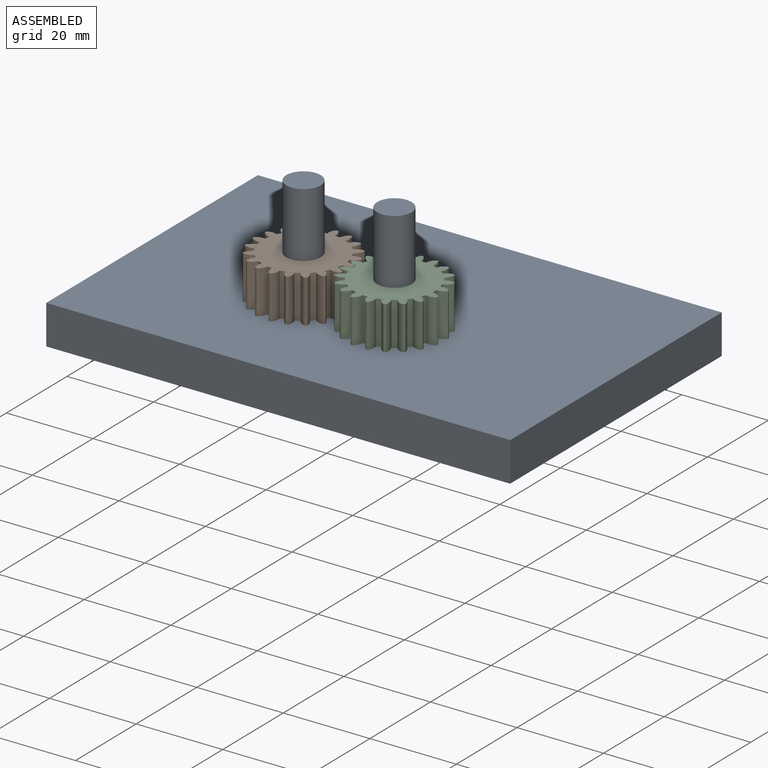
[diagram: assembled view]
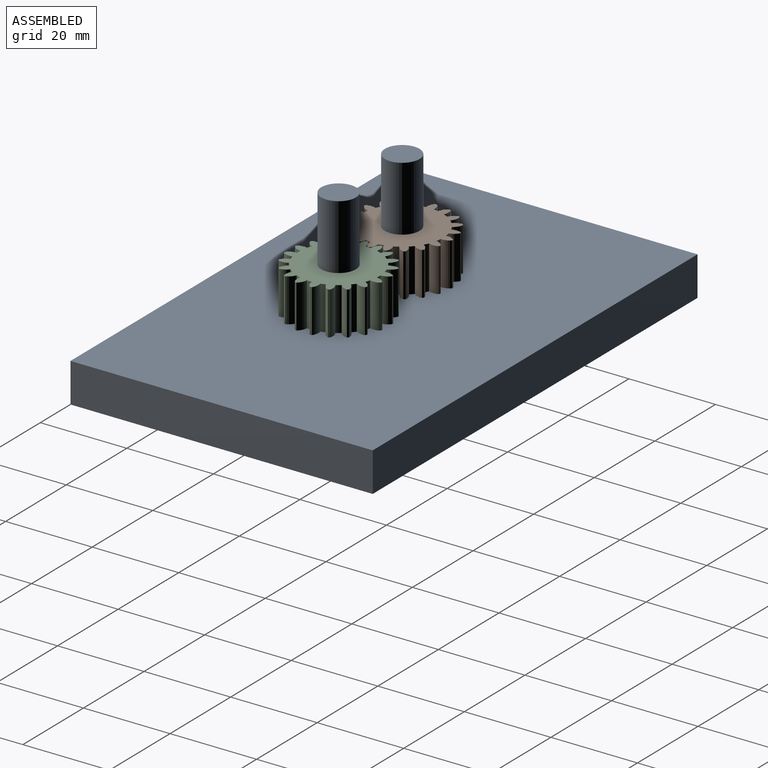
[diagram: assembled view, second angle]
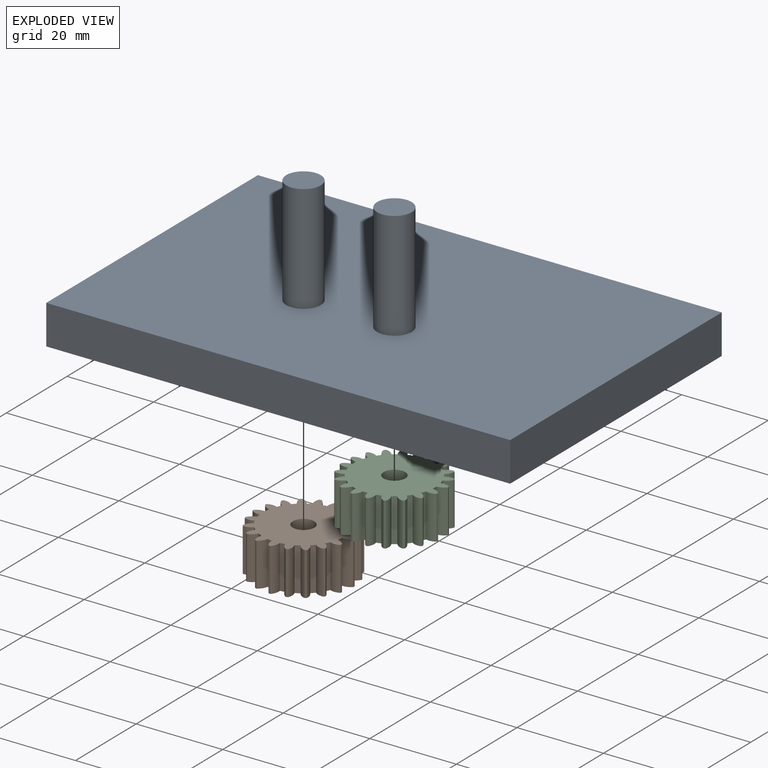
[diagram: exploded view]
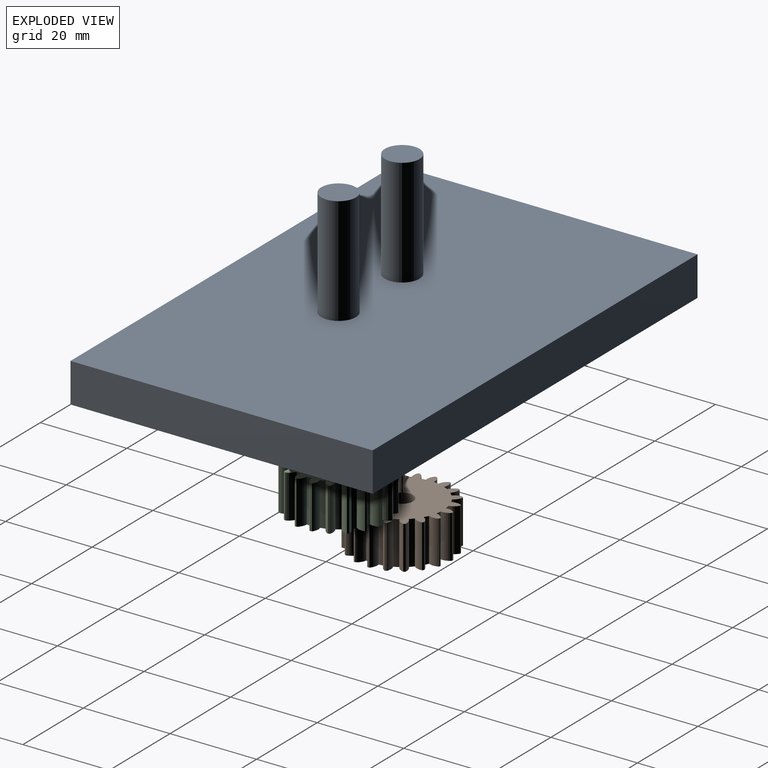
[diagram: exploded view, second angle]
ASSEMBLY  parts=3 mates=4
PART A: 10 faces, bbox 107.2x69.8x34.1 mm
  f0: plane 107.19x9.1mm, normal (0,1,0), area 975.5mm2, adj f1,f3,f4,f5
  f1: plane 69.84x9.1mm, normal (-1,0,0), area 635.5mm2, adj f0,f2,f4,f5
  f2: plane 107.19x9.1mm, normal (0,-1,0), area 975.5mm2, adj f1,f3,f4,f5
  f3: plane 69.84x9.1mm, normal (1,0,0), area 635.5mm2, adj f0,f2,f4,f5
  f4: plane 107.19x69.84mm, normal (0,0,1), area 7385.3mm2, adj f0,f1,f2,f3,f6,f8
  f5: plane 107.19x69.84mm, normal (0,0,-1), area 7485.8mm2, adj f0,f1,f2,f3
  f6: cylinder r=4mm len=25mm, axis (0,0,-1), area 628.3mm2, adj f4,f7
  f7: plane 8x8mm, normal (0,0,1), area 50.3mm2, adj f6
  f8: cylinder r=4mm len=25mm, axis (0,0,-1), area 628.3mm2, adj f4,f9
  f9: plane 8x8mm, normal (0,0,1), area 50.3mm2, adj f8
PART B: 83 faces, bbox 23x23x10 mm
  f0: cylinder r=2.61mm len=10mm, axis (0,0,-1), area 23.1mm2, adj f1,f79,f81,f82
  f1: cylinder r=9.41mm len=10mm, axis (0,0,-1), area 11.7mm2, adj f0,f2,f81,f82
  f2: cylinder r=2.61mm len=10mm, axis (0,0,-1), area 23.1mm2, adj f1,f3,f81,f82
  f3: plane 10x0.41mm, normal (-0.38,0.92,0), area 4.4mm2, adj f2,f4,f81,f82
  f4: cylinder r=2.61mm len=10mm, axis (0,0,-1), area 23.1mm2, adj f3,f5,f81,f82
  f5: cylinder r=9.41mm len=10mm, axis (0,0,-1), area 11.7mm2, adj f4,f6,f81,f82
  f6: cylinder r=2.61mm len=10mm, axis (0,0,-1), area 23.1mm2, adj f5,f7,f81,f82
  f7: plane 10x0.34mm, normal (-0.65,0.76,0), area 4.4mm2, adj f6,f8,f81,f82
  f8: cylinder r=2.61mm len=10mm, axis (0,0,-1), area 23.1mm2, adj f7,f9,f81,f82
  f9: cylinder r=9.41mm len=10mm, axis (0,0,-1), area 11.7mm2, adj f8,f10,f81,f82
  f10: cylinder r=2.61mm len=10mm, axis (0,0,-1), area 23.1mm2, adj f9,f11,f81,f82
  f11: plane 10x0.38mm, normal (-0.85,0.52,0), area 4.4mm2, adj f10,f12,f81,f82
  f12: cylinder r=2.61mm len=10mm, axis (0,0,-1), area 23.1mm2, adj f11,f13,f81,f82
  f13: cylinder r=9.41mm len=10mm, axis (0,0,-1), area 11.7mm2, adj f12,f14,f81,f82
  f14: cylinder r=2.61mm len=10mm, axis (0,0,-1), area 23.1mm2, adj f13,f15,f81,f82
  f15: plane 10x0.43mm, normal (-0.97,0.23,0), area 4.4mm2, adj f14,f16,f81,f82
  f16: cylinder r=2.61mm len=10mm, axis (0,0,-1), area 23.1mm2, adj f15,f17,f81,f82
  f17: cylinder r=9.41mm len=10mm, axis (0,0,-1), area 11.7mm2, adj f16,f18,f81,f82
  f18: cylinder r=2.61mm len=10mm, axis (0,0,-1), area 23.1mm2, adj f17,f19,f81,f82
  f19: plane 10x0.44mm, normal (-1,-0.08,0), area 4.4mm2, adj f18,f20,f81,f82
  f20: cylinder r=2.61mm len=10mm, axis (0,0,-1), area 23.1mm2, adj f19,f21,f81,f82
  f21: cylinder r=9.41mm len=10mm, axis (0,0,-1), area 11.7mm2, adj f20,f22,f81,f82
  f22: cylinder r=2.61mm len=10mm, axis (0,0,-1), area 23.1mm2, adj f21,f23,f81,f82
  f23: plane 10x0.41mm, normal (-0.92,-0.38,0), area 4.4mm2, adj f22,f24,f81,f82
  f24: cylinder r=2.61mm len=10mm, axis (0,0,-1), area 23.1mm2, adj f23,f25,f81,f82
  f25: cylinder r=9.41mm len=10mm, axis (0,0,-1), area 11.7mm2, adj f24,f26,f81,f82
  f26: cylinder r=2.61mm len=10mm, axis (0,0,-1), area 23.1mm2, adj f25,f27,f81,f82
  f27: plane 10x0.34mm, normal (-0.76,-0.65,0), area 4.4mm2, adj f26,f28,f81,f82
  f28: cylinder r=2.61mm len=10mm, axis (0,0,-1), area 23.1mm2, adj f27,f29,f81,f82
  f29: cylinder r=9.41mm len=10mm, axis (0,0,-1), area 11.7mm2, adj f28,f30,f81,f82
  f30: cylinder r=2.61mm len=10mm, axis (0,0,-1), area 23.1mm2, adj f29,f31,f81,f82
  f31: plane 10x0.38mm, normal (-0.52,-0.85,0), area 4.4mm2, adj f30,f32,f81,f82
  f32: cylinder r=2.61mm len=10mm, axis (0,0,-1), area 23.1mm2, adj f31,f33,f81,f82
  f33: cylinder r=9.41mm len=10mm, axis (0,0,-1), area 11.7mm2, adj f32,f34,f81,f82
  f34: cylinder r=2.61mm len=10mm, axis (0,0,-1), area 23.1mm2, adj f33,f35,f81,f82
  f35: plane 10x0.43mm, normal (-0.23,-0.97,0), area 4.4mm2, adj f34,f36,f81,f82
  f36: cylinder r=2.61mm len=10mm, axis (0,0,-1), area 23.1mm2, adj f35,f37,f81,f82
  f37: cylinder r=9.41mm len=10mm, axis (0,0,-1), area 11.7mm2, adj f36,f38,f81,f82
  f38: cylinder r=2.61mm len=10mm, axis (0,0,-1), area 23.1mm2, adj f37,f39,f81,f82
  f39: plane 10x0.44mm, normal (0.08,-1,0), area 4.4mm2, adj f38,f40,f81,f82
  f40: cylinder r=2.61mm len=10mm, axis (0,0,-1), area 23.1mm2, adj f39,f41,f81,f82
  f41: cylinder r=9.41mm len=10mm, axis (0,0,-1), area 11.7mm2, adj f40,f42,f81,f82
  f42: cylinder r=2.61mm len=10mm, axis (0,0,-1), area 23.1mm2, adj f41,f43,f81,f82
  f43: plane 10x0.41mm, normal (0.38,-0.92,0), area 4.4mm2, adj f42,f44,f81,f82
  f44: cylinder r=2.61mm len=10mm, axis (0,0,-1), area 23.1mm2, adj f43,f45,f81,f82
  f45: cylinder r=9.41mm len=10mm, axis (0,0,-1), area 11.7mm2, adj f44,f46,f81,f82
  f46: cylinder r=2.61mm len=10mm, axis (0,0,-1), area 23.1mm2, adj f45,f47,f81,f82
  f47: plane 10x0.34mm, normal (0.65,-0.76,0), area 4.4mm2, adj f46,f48,f81,f82
  f48: cylinder r=2.61mm len=10mm, axis (0,0,-1), area 23.1mm2, adj f47,f49,f81,f82
  f49: cylinder r=9.41mm len=10mm, axis (0,0,-1), area 11.7mm2, adj f48,f50,f81,f82
  f50: cylinder r=2.61mm len=10mm, axis (0,0,-1), area 23.1mm2, adj f49,f51,f81,f82
  f51: plane 10x0.38mm, normal (0.85,-0.52,0), area 4.4mm2, adj f50,f52,f81,f82
  f52: cylinder r=2.61mm len=10mm, axis (0,0,-1), area 23.1mm2, adj f51,f53,f81,f82
  f53: cylinder r=9.41mm len=10mm, axis (0,0,-1), area 11.7mm2, adj f52,f54,f81,f82
  f54: cylinder r=2.61mm len=10mm, axis (0,0,-1), area 23.1mm2, adj f53,f55,f81,f82
  f55: plane 10x0.43mm, normal (0.97,-0.23,0), area 4.4mm2, adj f54,f56,f81,f82
  f56: cylinder r=2.61mm len=10mm, axis (0,0,-1), area 23.1mm2, adj f55,f57,f81,f82
  f57: cylinder r=9.41mm len=10mm, axis (0,0,-1), area 11.7mm2, adj f56,f58,f81,f82
  f58: cylinder r=2.61mm len=10mm, axis (0,0,-1), area 23.1mm2, adj f57,f59,f81,f82
  f59: plane 10x0.44mm, normal (1,0.08,0), area 4.4mm2, adj f58,f60,f81,f82
  f60: cylinder r=2.61mm len=10mm, axis (0,0,-1), area 23.1mm2, adj f59,f61,f81,f82
  f61: cylinder r=9.41mm len=10mm, axis (0,0,-1), area 11.7mm2, adj f60,f62,f81,f82
  f62: cylinder r=2.61mm len=10mm, axis (0,0,-1), area 23.1mm2, adj f61,f63,f81,f82
  f63: plane 10x0.41mm, normal (0.92,0.38,0), area 4.4mm2, adj f62,f64,f81,f82
  f64: cylinder r=2.61mm len=10mm, axis (0,0,-1), area 23.1mm2, adj f63,f65,f81,f82
  f65: cylinder r=9.41mm len=10mm, axis (0,0,-1), area 11.7mm2, adj f64,f66,f81,f82
  f66: cylinder r=2.61mm len=10mm, axis (0,0,-1), area 23.1mm2, adj f65,f67,f81,f82
  f67: plane 10x0.34mm, normal (0.76,0.65,0), area 4.4mm2, adj f66,f68,f81,f82
  f68: cylinder r=2.61mm len=10mm, axis (0,0,-1), area 23.1mm2, adj f67,f69,f81,f82
  f69: cylinder r=9.41mm len=10mm, axis (0,0,-1), area 11.7mm2, adj f68,f70,f81,f82
  f70: cylinder r=2.61mm len=10mm, axis (0,0,-1), area 23.1mm2, adj f69,f71,f81,f82
  f71: plane 10x0.38mm, normal (0.52,0.85,0), area 4.4mm2, adj f70,f72,f81,f82
  f72: cylinder r=2.61mm len=10mm, axis (0,0,-1), area 23.1mm2, adj f71,f73,f81,f82
  f73: cylinder r=9.41mm len=10mm, axis (0,0,-1), area 11.7mm2, adj f72,f74,f81,f82
  f74: cylinder r=2.61mm len=10mm, axis (0,0,-1), area 23.1mm2, adj f73,f75,f81,f82
  f75: plane 10x0.43mm, normal (0.23,0.97,0), area 4.4mm2, adj f74,f76,f81,f82
  f76: cylinder r=2.61mm len=10mm, axis (0,0,-1), area 23.1mm2, adj f75,f77,f81,f82
  f77: cylinder r=9.41mm len=10mm, axis (0,0,-1), area 11.7mm2, adj f76,f78,f81,f82
  f78: cylinder r=2.61mm len=10mm, axis (0,0,-1), area 23.1mm2, adj f77,f79,f81,f82
  f79: plane 10x0.44mm, normal (-0.08,1,0), area 4.4mm2, adj f0,f78,f81,f82
  f80: cylinder r=2.5mm len=10mm, axis (0,0,-1), area 157.1mm2, adj f81,f82
  f81: plane 22.96x22.96mm, normal (0,0,1), area 320mm2, adj f0,f1,f2,f3,f4,f5,f6,f7
  f82: plane 22.96x22.96mm, normal (0,0,-1), area 320mm2, adj f0,f1,f2,f3,f4,f5,f6,f7
PART C: same geometry as B
PLACE A t=(-17.98,0.86,-14.41)mm fixed
PLACE B rot(axis=(0,0,1),14.6deg) t=(-30.52,-9.72,-5.31)mm
PLACE C rot(axis=(0,0,1),165.4deg) t=(-9.52,-9.72,-5.31)mm
MATE cylindrical B.f1 <-> A.f6  axis (0,0,-1) through (-30.52,-9.72,-0.31)mm
MATE planar B.f82 <-> A.f4  axis (0,0,-1) through (-23.35,-15.81,-5.31)mm
MATE cylindrical A.f8 <-> C.f1  axis (0,0,-1) through (-9.52,-9.72,7.19)mm
MATE planar A.f4 <-> C.f82  axis (0,0,1) through (-16.01,-3.73,-5.31)mm
